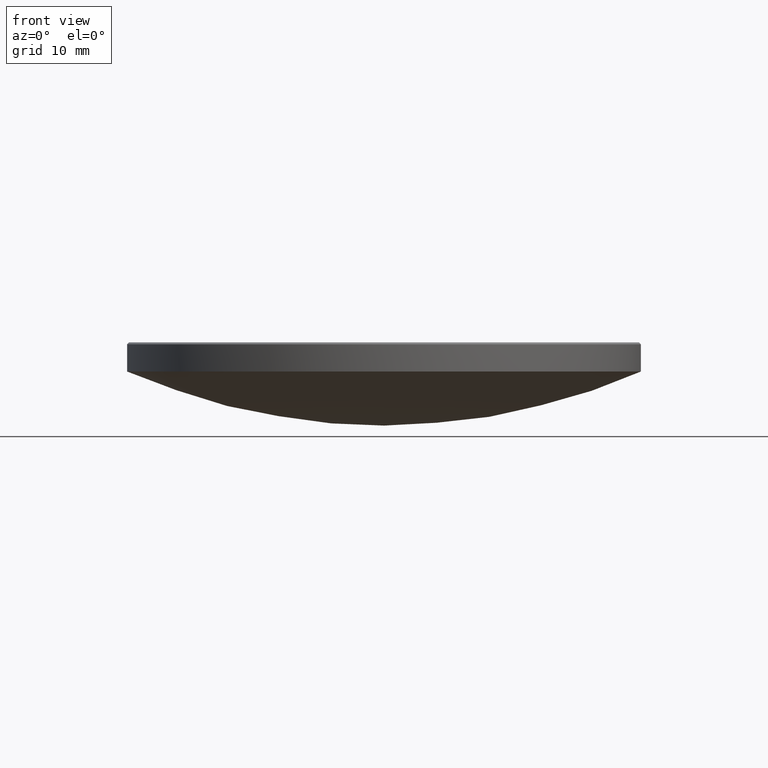
[diagram: clean part render]
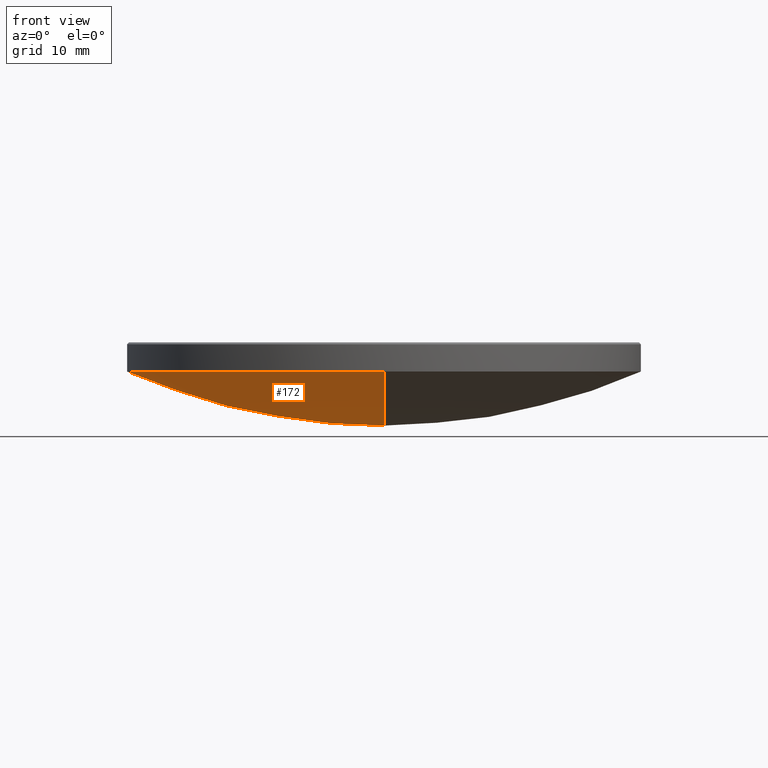
[diagram: same view with one face highlighted and labeled with its STEP entity id]
A machine part, front view. The second image highlights one B-rep face of the part: STEP entity #172.
In plain terms, the highlighted spherical surface has radius 63.02 mm.
Its self-contained STEP definition (entity closure, byte-faithful):
#7 = VERTEX_POINT ( 'NONE', #95 ) ;
#13 = CARTESIAN_POINT ( 'NONE',  ( -25.39999999999999503, 0.000000000000000000, 14.00000000000000000 ) ) ;
#49 = VERTEX_POINT ( 'NONE', #75 ) ;
#52 = EDGE_LOOP ( 'NONE', ( #122, #131, #84, #231 ) ) ;
#61 = EDGE_CURVE ( 'NONE', #202, #160, #218, .T. ) ;
#68 = CIRCLE ( 'NONE', #220, 25.39999999999999503 ) ;
#74 = DIRECTION ( 'NONE',  ( -0.000000000000000000, -0.000000000000000000, 1.000000000000000000 ) ) ;
#75 = CARTESIAN_POINT ( 'NONE',  ( 0.000000000000000000, 3.858862064113310261E-15, 8.654607931047095803 ) ) ;
#84 = ORIENTED_EDGE ( 'NONE', *, *, #61, .F. ) ;
#95 = CARTESIAN_POINT ( 'NONE',  ( 0.000000000000000000, 25.39999999999999147, 14.00000000000000178 ) ) ;
#104 = CIRCLE ( 'NONE', #134, 63.02000000000000313 ) ;
#108 = SPHERICAL_SURFACE ( 'NONE', #237, 63.02000000000000313 ) ;
#117 = DIRECTION ( 'NONE',  ( -1.224646799147353207E-16, -1.000000000000000000, 0.000000000000000000 ) ) ;
#118 = DIRECTION ( 'NONE',  ( -0.000000000000000000, -0.000000000000000000, 1.000000000000000000 ) ) ;
#122 = ORIENTED_EDGE ( 'NONE', *, *, #201, .F. ) ;
#123 = CARTESIAN_POINT ( 'NONE',  ( -3.110602869834276076E-15, -25.39999999999999147, 14.00000000000000178 ) ) ;
#124 = DIRECTION ( 'NONE',  ( 1.000000000000000000, -0.000000000000000000, 0.000000000000000000 ) ) ;
#131 = ORIENTED_EDGE ( 'NONE', *, *, #256, .T. ) ;
#134 = AXIS2_PLACEMENT_3D ( 'NONE', #240, #248, #117 ) ;
#153 = AXIS2_PLACEMENT_3D ( 'NONE', #166, #124, #210 ) ;
#160 = VERTEX_POINT ( 'NONE', #123 ) ;
#166 = CARTESIAN_POINT ( 'NONE',  ( 0.000000000000000000, 0.000000000000000000, 71.67460793104710604 ) ) ;
#169 = FACE_OUTER_BOUND ( 'NONE', #52, .T. ) ;
#172 = ADVANCED_FACE ( 'NONE', ( #169 ), #108, .T. ) ;
#184 = DIRECTION ( 'NONE',  ( 1.000000000000000000, 0.000000000000000000, 0.000000000000000000 ) ) ;
#201 = EDGE_CURVE ( 'NONE', #49, #7, #215, .T. ) ;
#202 = VERTEX_POINT ( 'NONE', #13 ) ;
#210 = DIRECTION ( 'NONE',  ( 0.000000000000000000, 0.000000000000000000, -1.000000000000000000 ) ) ;
#212 = DIRECTION ( 'NONE',  ( 0.000000000000000000, 1.000000000000000000, 0.000000000000000000 ) ) ;
#215 = CIRCLE ( 'NONE', #153, 63.02000000000000313 ) ;
#217 = AXIS2_PLACEMENT_3D ( 'NONE', #224, #118, #184 ) ;
#218 = CIRCLE ( 'NONE', #217, 25.39999999999999503 ) ;
#220 = AXIS2_PLACEMENT_3D ( 'NONE', #264, #74, #242 ) ;
#224 = CARTESIAN_POINT ( 'NONE',  ( 0.000000000000000000, 0.000000000000000000, 14.00000000000000000 ) ) ;
#231 = ORIENTED_EDGE ( 'NONE', *, *, #243, .F. ) ;
#237 = AXIS2_PLACEMENT_3D ( 'NONE', #253, #257, #212 ) ;
#240 = CARTESIAN_POINT ( 'NONE',  ( 0.000000000000000000, 0.000000000000000000, 71.67460793104710604 ) ) ;
#242 = DIRECTION ( 'NONE',  ( 1.000000000000000000, 0.000000000000000000, 0.000000000000000000 ) ) ;
#243 = EDGE_CURVE ( 'NONE', #7, #202, #68, .T. ) ;
#248 = DIRECTION ( 'NONE',  ( -1.000000000000000000, 1.224646799147353207E-16, 0.000000000000000000 ) ) ;
#253 = CARTESIAN_POINT ( 'NONE',  ( 0.000000000000000000, 0.000000000000000000, 71.67460793104710604 ) ) ;
#256 = EDGE_CURVE ( 'NONE', #49, #160, #104, .T. ) ;
#257 = DIRECTION ( 'NONE',  ( -1.000000000000000000, 0.000000000000000000, 0.000000000000000000 ) ) ;
#264 = CARTESIAN_POINT ( 'NONE',  ( 0.000000000000000000, 0.000000000000000000, 14.00000000000000000 ) ) ;